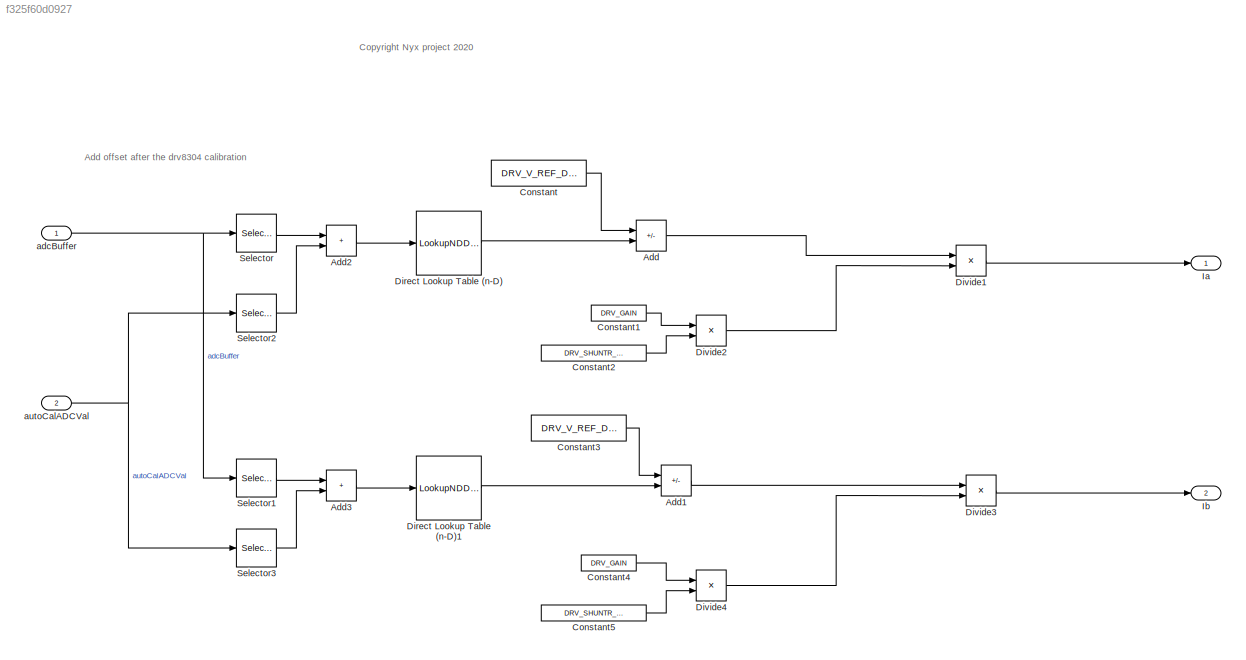
MODEL slx_f325f60d0927
KIND model
CONFIG AbsTol = auto
CONFIG EnableMultiTasking = off
CONFIG FixedStep = 2e-4
CONFIG MaxStep = auto
CONFIG MinStep = auto
CONFIG RelTol = 1e-3
CONFIG SampleTimeConstraint = Unconstrained
CONFIG SolverName = FixedStepDiscrete
CONFIG StartTime = 0.0
CONFIG StopTime = 100
BLOCK [Sum] Add
  IconShape = rectangular
  Inputs = +-
  RndMeth = Simplest
BLOCK [Sum] Add1
  IconShape = rectangular
  Inputs = +-
  OutDataTypeStr = fixdt(1,16,2^-14,0)
  RndMeth = Simplest
BLOCK [Sum] Add2
  IconShape = rectangular
  OutDataTypeStr = uint16
  SaturateOnIntegerOverflow = on
BLOCK [Sum] Add3
  IconShape = rectangular
  OutDataTypeStr = uint16
  SaturateOnIntegerOverflow = on
BLOCK [Constant] Constant
  Value = DRV_V_REF_Div2
BLOCK [Constant] Constant1
  Value = DRV_GAIN
BLOCK [Constant] Constant2
  Value = DRV_SHUNTR_OHM
BLOCK [Constant] Constant3
  Value = DRV_V_REF_Div2
BLOCK [Constant] Constant4
  Value = DRV_GAIN
BLOCK [Constant] Constant5
  Value = DRV_SHUNTR_OHM
BLOCK [LookupNDDirect] Direct Lookup Table (n-D)
  NumberOfTableDimensions = 1
  Table = ADC_V_OUT
BLOCK [LookupNDDirect] Direct Lookup Table (n-D)1
  NumberOfTableDimensions = 1
  Table = ADC_V_OUT
BLOCK [Product] Divide1
  Inputs = */
  OutDataTypeStr = single
  OutMax = 3.3
  OutMin = 0
  SaturateOnIntegerOverflow = on
BLOCK [Product] Divide2
  Inputs = **
  OutDataTypeStr = fixdt(1,16,2^-10,0)
  OutMax = 3.3
  OutMin = 0
  SaturateOnIntegerOverflow = on
BLOCK [Product] Divide3
  Inputs = */
  OutDataTypeStr = single
  OutMax = 3.3
  OutMin = 0
  RndMeth = Convergent
  SaturateOnIntegerOverflow = on
BLOCK [Product] Divide4
  Inputs = **
  OutDataTypeStr = fixdt(1,16,2^-10,0)
  OutMax = 3.3
  OutMin = 0
  SaturateOnIntegerOverflow = on
BLOCK [Outport] Ia
  PortDimensions = 1
  SamplingMode = Sample based
  SignalType = real
BLOCK [Outport] Ib
  Port = 2
  PortDimensions = 1
  SamplingMode = Sample based
  SignalType = real
BLOCK [Selector] Selector
  IndexOptions = Index vector (dialog)
  Indices = 1
  InputPortWidth = 2
  OutputSizes = 1
BLOCK [Selector] Selector1
  IndexOptions = Index vector (dialog)
  Indices = 2
  InputPortWidth = 2
  OutputSizes = 1
BLOCK [Selector] Selector2
  IndexOptions = Index vector (dialog)
  Indices = 1
  InputPortWidth = 2
  OutputSizes = 1
BLOCK [Selector] Selector3
  IndexOptions = Index vector (dialog)
  Indices = 2
  InputPortWidth = 2
  OutputSizes = 1
BLOCK [Inport] adcBuffer
  OutDataTypeStr = uint16
  SamplingMode = Sample based
  SignalType = real
BLOCK [Inport] autoCalADCVal
  OutDataTypeStr = int16
  Port = 2
  SamplingMode = Sample based
  SignalType = real
ANNOTATION (root): Add offset after the drv8304 calibration
ANNOTATION (root): <copyright redacted>
LINE Add1:1 -> Divide3:1
LINE Add2:1 -> Direct Lookup Table (n-D):1
LINE Add3:1 -> Direct Lookup Table (n-D)1:1
LINE Add:1 -> Divide1:1
LINE Constant1:1 -> Divide2:1
LINE Constant2:1 -> Divide2:2
LINE Constant3:1 -> Add1:1
LINE Constant4:1 -> Divide4:1
LINE Constant5:1 -> Divide4:2
LINE Constant:1 -> Add:1
LINE Direct Lookup Table (n-D)1:1 -> Add1:2
LINE Direct Lookup Table (n-D):1 -> Add:2
LINE Divide1:1 -> Ia:1
LINE Divide2:1 -> Divide1:2
LINE Divide3:1 -> Ib:1
LINE Divide4:1 -> Divide3:2
LINE Selector1:1 -> Add3:1
LINE Selector2:1 -> Add2:2
LINE Selector3:1 -> Add3:2
LINE Selector:1 -> Add2:1
NET adcBuffer:1 -> Selector1:1, Selector:1
NET autoCalADCVal:1 -> Selector2:1, Selector3:1
note: NET lines group one-source signal fan-out (src -> all destinations, sorted); 1:1 wires keep LINE
